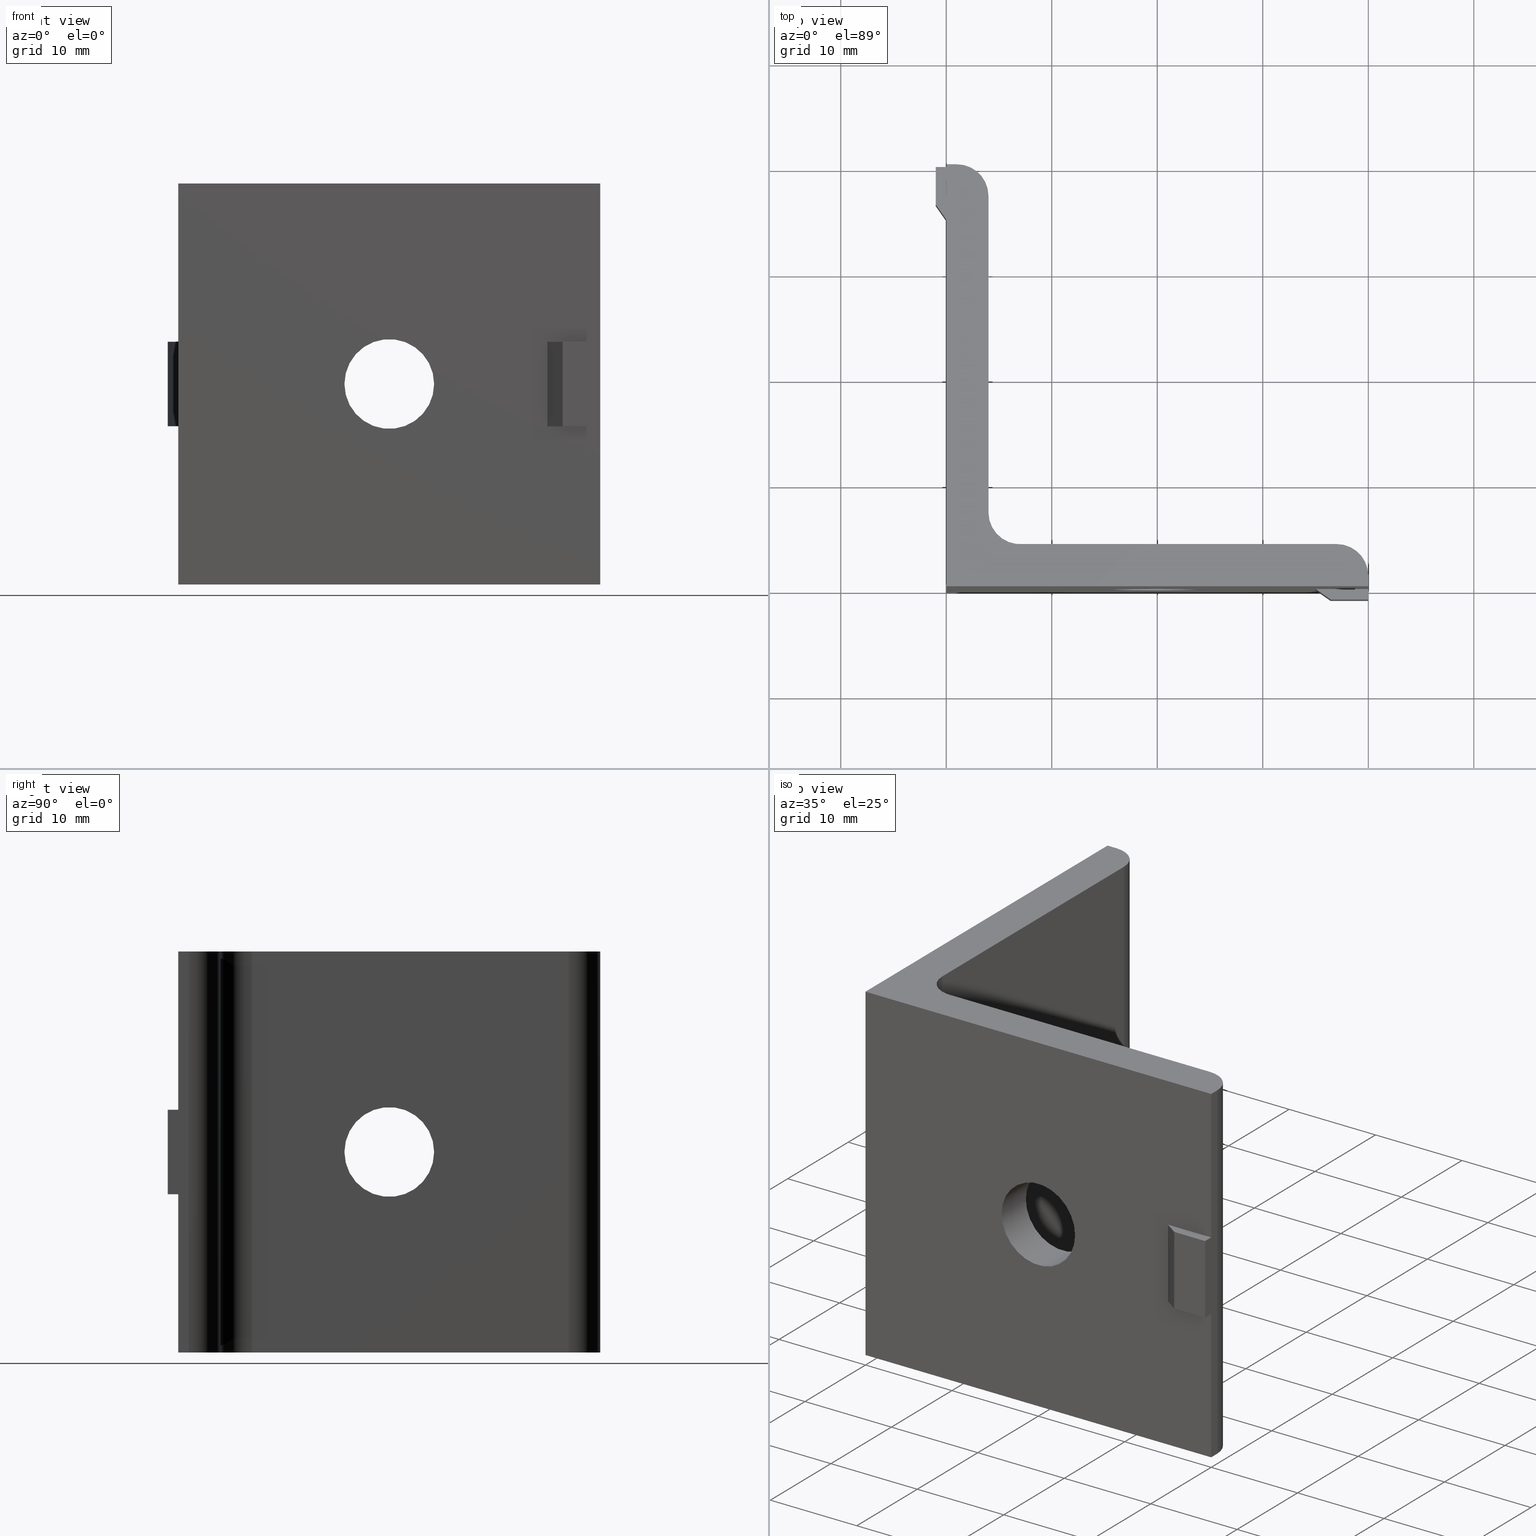
[diagram: canonical four-view strip — front | top / right | iso, engineering-drawing reading convention]
A machine part, canonical four-view strip (front | top / right | iso — engineering-drawing reading convention). The complete STEP part file that produces these views, byte-faithful:
ISO-10303-21;
HEADER;
/* Generated by software containing ST-Developer
 * from STEP Tools, Inc. (www.steptools.com) 
 */

FILE_DESCRIPTION(
/* description */ ('SQUADRETTA 40x40x40 L ANTIROT.'),
/* implementation_level */ '2;1');

FILE_NAME(
/* name */ 
'Q:\\Catalogo\\2_Accessori Dierre\\Per Download Web e catalogo cartace
o\\CATALOGO ELEMENTI ASSEMBLAGGIO\\PAGINA 31\\DSQAL0000021.stp',
/* time_stamp */ '2018-06-11T14:55:03+02:00',
/* author */ ('fzagni'),
/* organization */ (''),
/* preprocessor_version */ 'ST-DEVELOPER v16.1',
/* originating_system */ 'Autodesk Inventor 2016',
/* authorisation */ '');

FILE_SCHEMA (('AUTOMOTIVE_DESIGN { 1 0 10303 214 3 1 1 }'));
ENDSEC;

DATA;
#10=MECHANICAL_DESIGN_GEOMETRIC_PRESENTATION_REPRESENTATION('',(#13),#674);
#11=SHAPE_REPRESENTATION_RELATIONSHIP('SRR','None',#683,#12);
#12=ADVANCED_BREP_SHAPE_REPRESENTATION('',(#14),#673);
#13=STYLED_ITEM('',(#692),#14);
#14=MANIFOLD_SOLID_BREP('None',#414);
#15=FACE_BOUND('',#62,.T.);
#16=FACE_BOUND('',#65,.T.);
#17=FACE_BOUND('',#75,.T.);
#18=FACE_BOUND('',#79,.T.);
#19=FACE_BOUND('',#81,.T.);
#20=FACE_BOUND('',#83,.T.);
#21=CIRCLE('',#420,3.00000087730359);
#22=CIRCLE('',#421,3.00000087730359);
#23=CIRCLE('',#423,4.24999905648292);
#24=CIRCLE('',#425,3.01646599772585);
#25=CIRCLE('',#426,3.01646599772585);
#26=CIRCLE('',#428,4.24999905648292);
#27=CIRCLE('',#430,3.00000123570885);
#28=CIRCLE('',#431,3.00000123570885);
#29=CIRCLE('',#440,4.24999905648292);
#30=CIRCLE('',#444,4.24999905648292);
#31=CYLINDRICAL_SURFACE('',#419,3.00000087730359);
#32=CYLINDRICAL_SURFACE('',#424,3.01646599772585);
#33=CYLINDRICAL_SURFACE('',#429,3.00000123570885);
#34=CYLINDRICAL_SURFACE('',#445,4.24999905648292);
#35=CYLINDRICAL_SURFACE('',#446,4.24999905648292);
#36=FACE_OUTER_BOUND('',#57,.T.);
#37=FACE_OUTER_BOUND('',#58,.T.);
#38=FACE_OUTER_BOUND('',#59,.T.);
#39=FACE_OUTER_BOUND('',#60,.T.);
#40=FACE_OUTER_BOUND('',#61,.T.);
#41=FACE_OUTER_BOUND('',#63,.T.);
#42=FACE_OUTER_BOUND('',#64,.T.);
#43=FACE_OUTER_BOUND('',#66,.T.);
#44=FACE_OUTER_BOUND('',#67,.T.);
#45=FACE_OUTER_BOUND('',#68,.T.);
#46=FACE_OUTER_BOUND('',#69,.T.);
#47=FACE_OUTER_BOUND('',#70,.T.);
#48=FACE_OUTER_BOUND('',#71,.T.);
#49=FACE_OUTER_BOUND('',#72,.T.);
#50=FACE_OUTER_BOUND('',#73,.T.);
#51=FACE_OUTER_BOUND('',#74,.T.);
#52=FACE_OUTER_BOUND('',#76,.T.);
#53=FACE_OUTER_BOUND('',#77,.T.);
#54=FACE_OUTER_BOUND('',#78,.T.);
#55=FACE_OUTER_BOUND('',#80,.T.);
#56=FACE_OUTER_BOUND('',#82,.T.);
#57=EDGE_LOOP('',(#267,#268,#269,#270));
#58=EDGE_LOOP('',(#271,#272,#273,#274));
#59=EDGE_LOOP('',(#275,#276,#277,#278,#279,#280,#281,#282));
#60=EDGE_LOOP('',(#283,#284,#285,#286));
#61=EDGE_LOOP('',(#287,#288,#289,#290));
#62=EDGE_LOOP('',(#291));
#63=EDGE_LOOP('',(#292,#293,#294,#295));
#64=EDGE_LOOP('',(#296,#297,#298,#299));
#65=EDGE_LOOP('',(#300));
#66=EDGE_LOOP('',(#301,#302,#303,#304));
#67=EDGE_LOOP('',(#305,#306,#307,#308,#309,#310,#311,#312));
#68=EDGE_LOOP('',(#313,#314,#315,#316));
#69=EDGE_LOOP('',(#317,#318,#319,#320));
#70=EDGE_LOOP('',(#321,#322,#323,#324,#325,#326,#327,#328,#329));
#71=EDGE_LOOP('',(#330,#331,#332,#333,#334,#335,#336,#337,#338));
#72=EDGE_LOOP('',(#339,#340,#341,#342));
#73=EDGE_LOOP('',(#343,#344,#345,#346));
#74=EDGE_LOOP('',(#347,#348,#349,#350,#351,#352,#353,#354));
#75=EDGE_LOOP('',(#355));
#76=EDGE_LOOP('',(#356,#357,#358,#359));
#77=EDGE_LOOP('',(#360,#361,#362,#363));
#78=EDGE_LOOP('',(#364,#365,#366,#367,#368,#369,#370,#371));
#79=EDGE_LOOP('',(#372));
#80=EDGE_LOOP('',(#373));
#81=EDGE_LOOP('',(#374));
#82=EDGE_LOOP('',(#375));
#83=EDGE_LOOP('',(#376));
#84=LINE('',#560,#129);
#85=LINE('',#562,#130);
#86=LINE('',#564,#131);
#87=LINE('',#565,#132);
#88=LINE('',#568,#133);
#89=LINE('',#570,#134);
#90=LINE('',#571,#135);
#91=LINE('',#575,#136);
#92=LINE('',#577,#137);
#93=LINE('',#579,#138);
#94=LINE('',#580,#139);
#95=LINE('',#582,#140);
#96=LINE('',#584,#141);
#97=LINE('',#585,#142);
#98=LINE('',#590,#143);
#99=LINE('',#594,#144);
#100=LINE('',#596,#145);
#101=LINE('',#597,#146);
#102=LINE('',#604,#147);
#103=LINE('',#608,#148);
#104=LINE('',#610,#149);
#105=LINE('',#611,#150);
#106=LINE('',#618,#151);
#107=LINE('',#622,#152);
#108=LINE('',#624,#153);
#109=LINE('',#626,#154);
#110=LINE('',#628,#155);
#111=LINE('',#630,#156);
#112=LINE('',#632,#157);
#113=LINE('',#633,#158);
#114=LINE('',#636,#159);
#115=LINE('',#638,#160);
#116=LINE('',#639,#161);
#117=LINE('',#643,#162);
#118=LINE('',#644,#163);
#119=LINE('',#645,#164);
#120=LINE('',#648,#165);
#121=LINE('',#649,#166);
#122=LINE('',#652,#167);
#123=LINE('',#653,#168);
#124=LINE('',#655,#169);
#125=LINE('',#657,#170);
#126=LINE('',#659,#171);
#127=LINE('',#663,#172);
#128=LINE('',#665,#173);
#129=VECTOR('',#451,8.);
#130=VECTOR('',#452,1.74755421724879);
#131=VECTOR('',#453,8.);
#132=VECTOR('',#454,1.74755421724879);
#133=VECTOR('',#457,3.56684795819318);
#134=VECTOR('',#458,8.);
#135=VECTOR('',#459,3.56684795819318);
#136=VECTOR('',#462,38.);
#137=VECTOR('',#463,1.00000586461692);
#138=VECTOR('',#464,15.);
#139=VECTOR('',#465,0.999999777934136);
#140=VECTOR('',#466,0.999999777934136);
#141=VECTOR('',#467,15.);
#142=VECTOR('',#468,1.00000586461692);
#143=VECTOR('',#473,38.);
#144=VECTOR('',#478,29.6686892302173);
#145=VECTOR('',#479,38.);
#146=VECTOR('',#480,29.6686892302173);
#147=VECTOR('',#487,38.);
#148=VECTOR('',#492,29.9999916301208);
#149=VECTOR('',#493,38.);
#150=VECTOR('',#494,29.9999916301208);
#151=VECTOR('',#501,38.);
#152=VECTOR('',#506,0.999998827996023);
#153=VECTOR('',#507,15.);
#154=VECTOR('',#508,1.00000072799594);
#155=VECTOR('',#509,7.99999999999999);
#156=VECTOR('',#510,1.00000072799594);
#157=VECTOR('',#511,15.);
#158=VECTOR('',#512,0.999998827996023);
#159=VECTOR('',#515,3.56684795814544);
#160=VECTOR('',#516,7.99999999999999);
#161=VECTOR('',#517,3.56684795814544);
#162=VECTOR('',#520,7.99999999999999);
#163=VECTOR('',#521,1.7475539818121);
#164=VECTOR('',#522,1.7475539818121);
#165=VECTOR('',#525,39.9999863498886);
#166=VECTOR('',#526,39.9999911198402);
#167=VECTOR('',#529,39.9999911198402);
#168=VECTOR('',#530,39.9999863498886);
#169=VECTOR('',#533,5.00000651997834);
#170=VECTOR('',#536,5.00000651997834);
#171=VECTOR('',#539,38.);
#172=VECTOR('',#544,5.00000747002513);
#173=VECTOR('',#547,5.00000747002513);
#174=VERTEX_POINT('',#558);
#175=VERTEX_POINT('',#559);
#176=VERTEX_POINT('',#561);
#177=VERTEX_POINT('',#563);
#178=VERTEX_POINT('',#567);
#179=VERTEX_POINT('',#569);
#180=VERTEX_POINT('',#573);
#181=VERTEX_POINT('',#574);
#182=VERTEX_POINT('',#576);
#183=VERTEX_POINT('',#578);
#184=VERTEX_POINT('',#581);
#185=VERTEX_POINT('',#583);
#186=VERTEX_POINT('',#587);
#187=VERTEX_POINT('',#589);
#188=VERTEX_POINT('',#593);
#189=VERTEX_POINT('',#595);
#190=VERTEX_POINT('',#598);
#191=VERTEX_POINT('',#601);
#192=VERTEX_POINT('',#603);
#193=VERTEX_POINT('',#607);
#194=VERTEX_POINT('',#609);
#195=VERTEX_POINT('',#612);
#196=VERTEX_POINT('',#615);
#197=VERTEX_POINT('',#617);
#198=VERTEX_POINT('',#621);
#199=VERTEX_POINT('',#623);
#200=VERTEX_POINT('',#625);
#201=VERTEX_POINT('',#627);
#202=VERTEX_POINT('',#629);
#203=VERTEX_POINT('',#631);
#204=VERTEX_POINT('',#635);
#205=VERTEX_POINT('',#637);
#206=VERTEX_POINT('',#641);
#207=VERTEX_POINT('',#642);
#208=VERTEX_POINT('',#647);
#209=VERTEX_POINT('',#651);
#210=VERTEX_POINT('',#660);
#211=VERTEX_POINT('',#667);
#212=EDGE_CURVE('',#174,#175,#84,.T.);
#213=EDGE_CURVE('',#174,#176,#85,.T.);
#214=EDGE_CURVE('',#176,#177,#86,.T.);
#215=EDGE_CURVE('',#175,#177,#87,.T.);
#216=EDGE_CURVE('',#176,#178,#88,.T.);
#217=EDGE_CURVE('',#178,#179,#89,.T.);
#218=EDGE_CURVE('',#177,#179,#90,.T.);
#219=EDGE_CURVE('',#180,#181,#91,.T.);
#220=EDGE_CURVE('',#182,#181,#92,.T.);
#221=EDGE_CURVE('',#182,#183,#93,.T.);
#222=EDGE_CURVE('',#179,#183,#94,.T.);
#223=EDGE_CURVE('',#178,#184,#95,.T.);
#224=EDGE_CURVE('',#185,#184,#96,.T.);
#225=EDGE_CURVE('',#185,#180,#97,.T.);
#226=EDGE_CURVE('',#180,#186,#21,.T.);
#227=EDGE_CURVE('',#186,#187,#98,.T.);
#228=EDGE_CURVE('',#181,#187,#22,.T.);
#229=EDGE_CURVE('',#186,#188,#99,.T.);
#230=EDGE_CURVE('',#188,#189,#100,.T.);
#231=EDGE_CURVE('',#187,#189,#101,.T.);
#232=EDGE_CURVE('',#190,#190,#23,.T.);
#233=EDGE_CURVE('',#188,#191,#24,.T.);
#234=EDGE_CURVE('',#191,#192,#102,.T.);
#235=EDGE_CURVE('',#189,#192,#25,.T.);
#236=EDGE_CURVE('',#191,#193,#103,.T.);
#237=EDGE_CURVE('',#193,#194,#104,.T.);
#238=EDGE_CURVE('',#192,#194,#105,.T.);
#239=EDGE_CURVE('',#195,#195,#26,.T.);
#240=EDGE_CURVE('',#193,#196,#27,.T.);
#241=EDGE_CURVE('',#196,#197,#106,.T.);
#242=EDGE_CURVE('',#194,#197,#28,.T.);
#243=EDGE_CURVE('',#196,#198,#107,.T.);
#244=EDGE_CURVE('',#198,#199,#108,.T.);
#245=EDGE_CURVE('',#200,#199,#109,.T.);
#246=EDGE_CURVE('',#200,#201,#110,.T.);
#247=EDGE_CURVE('',#201,#202,#111,.T.);
#248=EDGE_CURVE('',#203,#202,#112,.T.);
#249=EDGE_CURVE('',#197,#203,#113,.T.);
#250=EDGE_CURVE('',#200,#204,#114,.T.);
#251=EDGE_CURVE('',#204,#205,#115,.T.);
#252=EDGE_CURVE('',#201,#205,#116,.T.);
#253=EDGE_CURVE('',#206,#207,#117,.T.);
#254=EDGE_CURVE('',#207,#205,#118,.T.);
#255=EDGE_CURVE('',#206,#204,#119,.T.);
#256=EDGE_CURVE('',#208,#185,#120,.T.);
#257=EDGE_CURVE('',#208,#198,#121,.T.);
#258=EDGE_CURVE('',#209,#203,#122,.T.);
#259=EDGE_CURVE('',#209,#182,#123,.T.);
#260=EDGE_CURVE('',#206,#199,#124,.T.);
#261=EDGE_CURVE('',#202,#207,#125,.T.);
#262=EDGE_CURVE('',#208,#209,#126,.T.);
#263=EDGE_CURVE('',#210,#210,#29,.T.);
#264=EDGE_CURVE('',#175,#183,#127,.T.);
#265=EDGE_CURVE('',#184,#174,#128,.T.);
#266=EDGE_CURVE('',#211,#211,#30,.T.);
#267=ORIENTED_EDGE('',*,*,#212,.F.);
#268=ORIENTED_EDGE('',*,*,#213,.T.);
#269=ORIENTED_EDGE('',*,*,#214,.T.);
#270=ORIENTED_EDGE('',*,*,#215,.F.);
#271=ORIENTED_EDGE('',*,*,#214,.F.);
#272=ORIENTED_EDGE('',*,*,#216,.T.);
#273=ORIENTED_EDGE('',*,*,#217,.T.);
#274=ORIENTED_EDGE('',*,*,#218,.F.);
#275=ORIENTED_EDGE('',*,*,#219,.T.);
#276=ORIENTED_EDGE('',*,*,#220,.F.);
#277=ORIENTED_EDGE('',*,*,#221,.T.);
#278=ORIENTED_EDGE('',*,*,#222,.F.);
#279=ORIENTED_EDGE('',*,*,#217,.F.);
#280=ORIENTED_EDGE('',*,*,#223,.T.);
#281=ORIENTED_EDGE('',*,*,#224,.F.);
#282=ORIENTED_EDGE('',*,*,#225,.T.);
#283=ORIENTED_EDGE('',*,*,#226,.T.);
#284=ORIENTED_EDGE('',*,*,#227,.T.);
#285=ORIENTED_EDGE('',*,*,#228,.F.);
#286=ORIENTED_EDGE('',*,*,#219,.F.);
#287=ORIENTED_EDGE('',*,*,#229,.T.);
#288=ORIENTED_EDGE('',*,*,#230,.T.);
#289=ORIENTED_EDGE('',*,*,#231,.F.);
#290=ORIENTED_EDGE('',*,*,#227,.F.);
#291=ORIENTED_EDGE('',*,*,#232,.F.);
#292=ORIENTED_EDGE('',*,*,#233,.T.);
#293=ORIENTED_EDGE('',*,*,#234,.T.);
#294=ORIENTED_EDGE('',*,*,#235,.F.);
#295=ORIENTED_EDGE('',*,*,#230,.F.);
#296=ORIENTED_EDGE('',*,*,#236,.T.);
#297=ORIENTED_EDGE('',*,*,#237,.T.);
#298=ORIENTED_EDGE('',*,*,#238,.F.);
#299=ORIENTED_EDGE('',*,*,#234,.F.);
#300=ORIENTED_EDGE('',*,*,#239,.F.);
#301=ORIENTED_EDGE('',*,*,#240,.T.);
#302=ORIENTED_EDGE('',*,*,#241,.T.);
#303=ORIENTED_EDGE('',*,*,#242,.F.);
#304=ORIENTED_EDGE('',*,*,#237,.F.);
#305=ORIENTED_EDGE('',*,*,#243,.T.);
#306=ORIENTED_EDGE('',*,*,#244,.T.);
#307=ORIENTED_EDGE('',*,*,#245,.F.);
#308=ORIENTED_EDGE('',*,*,#246,.T.);
#309=ORIENTED_EDGE('',*,*,#247,.T.);
#310=ORIENTED_EDGE('',*,*,#248,.F.);
#311=ORIENTED_EDGE('',*,*,#249,.F.);
#312=ORIENTED_EDGE('',*,*,#241,.F.);
#313=ORIENTED_EDGE('',*,*,#250,.T.);
#314=ORIENTED_EDGE('',*,*,#251,.T.);
#315=ORIENTED_EDGE('',*,*,#252,.F.);
#316=ORIENTED_EDGE('',*,*,#246,.F.);
#317=ORIENTED_EDGE('',*,*,#253,.T.);
#318=ORIENTED_EDGE('',*,*,#254,.T.);
#319=ORIENTED_EDGE('',*,*,#251,.F.);
#320=ORIENTED_EDGE('',*,*,#255,.F.);
#321=ORIENTED_EDGE('',*,*,#225,.F.);
#322=ORIENTED_EDGE('',*,*,#256,.F.);
#323=ORIENTED_EDGE('',*,*,#257,.T.);
#324=ORIENTED_EDGE('',*,*,#243,.F.);
#325=ORIENTED_EDGE('',*,*,#240,.F.);
#326=ORIENTED_EDGE('',*,*,#236,.F.);
#327=ORIENTED_EDGE('',*,*,#233,.F.);
#328=ORIENTED_EDGE('',*,*,#229,.F.);
#329=ORIENTED_EDGE('',*,*,#226,.F.);
#330=ORIENTED_EDGE('',*,*,#228,.T.);
#331=ORIENTED_EDGE('',*,*,#231,.T.);
#332=ORIENTED_EDGE('',*,*,#235,.T.);
#333=ORIENTED_EDGE('',*,*,#238,.T.);
#334=ORIENTED_EDGE('',*,*,#242,.T.);
#335=ORIENTED_EDGE('',*,*,#249,.T.);
#336=ORIENTED_EDGE('',*,*,#258,.F.);
#337=ORIENTED_EDGE('',*,*,#259,.T.);
#338=ORIENTED_EDGE('',*,*,#220,.T.);
#339=ORIENTED_EDGE('',*,*,#255,.T.);
#340=ORIENTED_EDGE('',*,*,#250,.F.);
#341=ORIENTED_EDGE('',*,*,#245,.T.);
#342=ORIENTED_EDGE('',*,*,#260,.F.);
#343=ORIENTED_EDGE('',*,*,#261,.F.);
#344=ORIENTED_EDGE('',*,*,#247,.F.);
#345=ORIENTED_EDGE('',*,*,#252,.T.);
#346=ORIENTED_EDGE('',*,*,#254,.F.);
#347=ORIENTED_EDGE('',*,*,#260,.T.);
#348=ORIENTED_EDGE('',*,*,#244,.F.);
#349=ORIENTED_EDGE('',*,*,#257,.F.);
#350=ORIENTED_EDGE('',*,*,#262,.T.);
#351=ORIENTED_EDGE('',*,*,#258,.T.);
#352=ORIENTED_EDGE('',*,*,#248,.T.);
#353=ORIENTED_EDGE('',*,*,#261,.T.);
#354=ORIENTED_EDGE('',*,*,#253,.F.);
#355=ORIENTED_EDGE('',*,*,#263,.T.);
#356=ORIENTED_EDGE('',*,*,#215,.T.);
#357=ORIENTED_EDGE('',*,*,#218,.T.);
#358=ORIENTED_EDGE('',*,*,#222,.T.);
#359=ORIENTED_EDGE('',*,*,#264,.F.);
#360=ORIENTED_EDGE('',*,*,#265,.F.);
#361=ORIENTED_EDGE('',*,*,#223,.F.);
#362=ORIENTED_EDGE('',*,*,#216,.F.);
#363=ORIENTED_EDGE('',*,*,#213,.F.);
#364=ORIENTED_EDGE('',*,*,#264,.T.);
#365=ORIENTED_EDGE('',*,*,#221,.F.);
#366=ORIENTED_EDGE('',*,*,#259,.F.);
#367=ORIENTED_EDGE('',*,*,#262,.F.);
#368=ORIENTED_EDGE('',*,*,#256,.T.);
#369=ORIENTED_EDGE('',*,*,#224,.T.);
#370=ORIENTED_EDGE('',*,*,#265,.T.);
#371=ORIENTED_EDGE('',*,*,#212,.T.);
#372=ORIENTED_EDGE('',*,*,#266,.T.);
#373=ORIENTED_EDGE('',*,*,#266,.F.);
#374=ORIENTED_EDGE('',*,*,#232,.T.);
#375=ORIENTED_EDGE('',*,*,#263,.F.);
#376=ORIENTED_EDGE('',*,*,#239,.T.);
#377=PLANE('',#416);
#378=PLANE('',#417);
#379=PLANE('',#418);
#380=PLANE('',#422);
#381=PLANE('',#427);
#382=PLANE('',#432);
#383=PLANE('',#433);
#384=PLANE('',#434);
#385=PLANE('',#435);
#386=PLANE('',#436);
#387=PLANE('',#437);
#388=PLANE('',#438);
#389=PLANE('',#439);
#390=PLANE('',#441);
#391=PLANE('',#442);
#392=PLANE('',#443);
#393=ADVANCED_FACE('',(#36),#377,.T.);
#394=ADVANCED_FACE('',(#37),#378,.T.);
#395=ADVANCED_FACE('',(#38),#379,.T.);
#396=ADVANCED_FACE('',(#39),#31,.T.);
#397=ADVANCED_FACE('',(#40,#15),#380,.T.);
#398=ADVANCED_FACE('',(#41),#32,.F.);
#399=ADVANCED_FACE('',(#42,#16),#381,.T.);
#400=ADVANCED_FACE('',(#43),#33,.T.);
#401=ADVANCED_FACE('',(#44),#382,.T.);
#402=ADVANCED_FACE('',(#45),#383,.T.);
#403=ADVANCED_FACE('',(#46),#384,.T.);
#404=ADVANCED_FACE('',(#47),#385,.F.);
#405=ADVANCED_FACE('',(#48),#386,.T.);
#406=ADVANCED_FACE('',(#49),#387,.F.);
#407=ADVANCED_FACE('',(#50),#388,.F.);
#408=ADVANCED_FACE('',(#51,#17),#389,.T.);
#409=ADVANCED_FACE('',(#52),#390,.F.);
#410=ADVANCED_FACE('',(#53),#391,.F.);
#411=ADVANCED_FACE('',(#54,#18),#392,.T.);
#412=ADVANCED_FACE('',(#55,#19),#34,.F.);
#413=ADVANCED_FACE('',(#56,#20),#35,.F.);
#414=CLOSED_SHELL('',(#393,#394,#395,#396,#397,#398,#399,#400,#401,#402,
#403,#404,#405,#406,#407,#408,#409,#410,#411,#412,#413));
#415=AXIS2_PLACEMENT_3D('placement',#556,#447,#448);
#416=AXIS2_PLACEMENT_3D('',#557,#449,#450);
#417=AXIS2_PLACEMENT_3D('',#566,#455,#456);
#418=AXIS2_PLACEMENT_3D('',#572,#460,#461);
#419=AXIS2_PLACEMENT_3D('',#586,#469,#470);
#420=AXIS2_PLACEMENT_3D('',#588,#471,#472);
#421=AXIS2_PLACEMENT_3D('',#591,#474,#475);
#422=AXIS2_PLACEMENT_3D('',#592,#476,#477);
#423=AXIS2_PLACEMENT_3D('',#599,#481,#482);
#424=AXIS2_PLACEMENT_3D('',#600,#483,#484);
#425=AXIS2_PLACEMENT_3D('',#602,#485,#486);
#426=AXIS2_PLACEMENT_3D('',#605,#488,#489);
#427=AXIS2_PLACEMENT_3D('',#606,#490,#491);
#428=AXIS2_PLACEMENT_3D('',#613,#495,#496);
#429=AXIS2_PLACEMENT_3D('',#614,#497,#498);
#430=AXIS2_PLACEMENT_3D('',#616,#499,#500);
#431=AXIS2_PLACEMENT_3D('',#619,#502,#503);
#432=AXIS2_PLACEMENT_3D('',#620,#504,#505);
#433=AXIS2_PLACEMENT_3D('',#634,#513,#514);
#434=AXIS2_PLACEMENT_3D('',#640,#518,#519);
#435=AXIS2_PLACEMENT_3D('',#646,#523,#524);
#436=AXIS2_PLACEMENT_3D('',#650,#527,#528);
#437=AXIS2_PLACEMENT_3D('',#654,#531,#532);
#438=AXIS2_PLACEMENT_3D('',#656,#534,#535);
#439=AXIS2_PLACEMENT_3D('',#658,#537,#538);
#440=AXIS2_PLACEMENT_3D('',#661,#540,#541);
#441=AXIS2_PLACEMENT_3D('',#662,#542,#543);
#442=AXIS2_PLACEMENT_3D('',#664,#545,#546);
#443=AXIS2_PLACEMENT_3D('',#666,#548,#549);
#444=AXIS2_PLACEMENT_3D('',#668,#550,#551);
#445=AXIS2_PLACEMENT_3D('',#669,#552,#553);
#446=AXIS2_PLACEMENT_3D('',#670,#554,#555);
#447=DIRECTION('axis',(0.,0.,1.));
#448=DIRECTION('refdir',(1.,0.,0.));
#449=DIRECTION('center_axis',(-0.572228185005018,-0.820094448393515,0.));
#450=DIRECTION('ref_axis',(0.,0.,1.));
#451=DIRECTION('',(0.,0.,1.));
#452=DIRECTION('',(0.820094448393515,-0.572228185005017,0.));
#453=DIRECTION('',(0.,0.,1.));
#454=DIRECTION('',(0.820094448393515,-0.572228185005017,0.));
#455=DIRECTION('center_axis',(0.,-1.,0.));
#456=DIRECTION('ref_axis',(0.,0.,-1.));
#457=DIRECTION('',(1.,0.,0.));
#458=DIRECTION('',(0.,0.,1.));
#459=DIRECTION('',(1.,0.,0.));
#460=DIRECTION('center_axis',(1.,2.27373E-13,0.));
#461=DIRECTION('ref_axis',(0.,0.,-1.));
#462=DIRECTION('',(0.,0.,1.));
#463=DIRECTION('',(-2.30925034835165E-13,1.,0.));
#464=DIRECTION('',(0.,0.,-1.));
#465=DIRECTION('',(-4.52971094636481E-13,1.,0.));
#466=DIRECTION('',(-4.52971094636481E-13,1.,1.66533490675177E-15));
#467=DIRECTION('',(0.,0.,1.));
#468=DIRECTION('',(-2.30925034835165E-13,1.,0.));
#469=DIRECTION('center_axis',(0.,0.,1.));
#470=DIRECTION('ref_axis',(1.,0.,0.));
#471=DIRECTION('center_axis',(0.,0.,1.));
#472=DIRECTION('ref_axis',(0.,1.,0.));
#473=DIRECTION('',(0.,0.,1.));
#474=DIRECTION('center_axis',(0.,0.,1.));
#475=DIRECTION('ref_axis',(0.,1.,0.));
#476=DIRECTION('center_axis',(0.,1.,0.));
#477=DIRECTION('ref_axis',(0.,0.,1.));
#478=DIRECTION('',(-1.,0.,0.));
#479=DIRECTION('',(0.,0.,1.));
#480=DIRECTION('',(-1.,0.,0.));
#481=DIRECTION('center_axis',(0.,1.,0.));
#482=DIRECTION('ref_axis',(-1.,0.,0.));
#483=DIRECTION('center_axis',(0.,0.,-1.));
#484=DIRECTION('ref_axis',(0.104370538628116,-0.994538481239654,0.));
#485=DIRECTION('center_axis',(0.,0.,-1.));
#486=DIRECTION('ref_axis',(-1.,0.,0.));
#487=DIRECTION('',(0.,0.,1.));
#488=DIRECTION('center_axis',(0.,0.,-1.));
#489=DIRECTION('ref_axis',(-1.,0.,0.));
#490=DIRECTION('center_axis',(1.,0.,0.));
#491=DIRECTION('ref_axis',(0.,0.,-1.));
#492=DIRECTION('',(0.,1.,0.));
#493=DIRECTION('',(0.,0.,1.));
#494=DIRECTION('',(0.,1.,0.));
#495=DIRECTION('center_axis',(1.,0.,0.));
#496=DIRECTION('ref_axis',(0.,1.,0.));
#497=DIRECTION('center_axis',(0.,0.,1.));
#498=DIRECTION('ref_axis',(1.,0.,0.));
#499=DIRECTION('center_axis',(0.,0.,1.));
#500=DIRECTION('ref_axis',(1.,0.,0.));
#501=DIRECTION('',(0.,0.,1.));
#502=DIRECTION('center_axis',(0.,0.,1.));
#503=DIRECTION('ref_axis',(1.,0.,0.));
#504=DIRECTION('center_axis',(0.,1.,0.));
#505=DIRECTION('ref_axis',(0.,0.,1.));
#506=DIRECTION('',(-1.,0.,0.));
#507=DIRECTION('',(0.,0.,1.));
#508=DIRECTION('',(1.,0.,0.));
#509=DIRECTION('',(0.,0.,1.));
#510=DIRECTION('',(1.,0.,0.));
#511=DIRECTION('',(0.,0.,-1.));
#512=DIRECTION('',(-1.,0.,0.));
#513=DIRECTION('center_axis',(-1.,0.,0.));
#514=DIRECTION('ref_axis',(0.,0.,1.));
#515=DIRECTION('',(0.,-1.,0.));
#516=DIRECTION('',(0.,0.,1.));
#517=DIRECTION('',(0.,-1.,0.));
#518=DIRECTION('center_axis',(-0.820094015262865,-0.572228805749966,0.));
#519=DIRECTION('ref_axis',(0.,0.,1.));
#520=DIRECTION('',(0.,0.,1.));
#521=DIRECTION('',(-0.572228805749966,0.820094015262864,0.));
#522=DIRECTION('',(-0.572228805749966,0.820094015262864,0.));
#523=DIRECTION('center_axis',(0.,0.,1.));
#524=DIRECTION('ref_axis',(1.,0.,0.));
#525=DIRECTION('',(1.,0.,0.));
#526=DIRECTION('',(0.,1.,0.));
#527=DIRECTION('center_axis',(0.,0.,1.));
#528=DIRECTION('ref_axis',(1.,0.,0.));
#529=DIRECTION('',(0.,1.,0.));
#530=DIRECTION('',(1.,0.,0.));
#531=DIRECTION('center_axis',(0.,0.,1.));
#532=DIRECTION('ref_axis',(1.,0.,0.));
#533=DIRECTION('',(0.,1.,0.));
#534=DIRECTION('center_axis',(0.,0.,-1.));
#535=DIRECTION('ref_axis',(-1.,0.,0.));
#536=DIRECTION('',(0.,-1.,0.));
#537=DIRECTION('center_axis',(-1.,0.,0.));
#538=DIRECTION('ref_axis',(0.,0.,1.));
#539=DIRECTION('',(0.,0.,1.));
#540=DIRECTION('center_axis',(1.,0.,0.));
#541=DIRECTION('ref_axis',(0.,1.,0.));
#542=DIRECTION('center_axis',(0.,0.,-1.));
#543=DIRECTION('ref_axis',(-1.,0.,0.));
#544=DIRECTION('',(1.,0.,0.));
#545=DIRECTION('center_axis',(0.,0.,1.));
#546=DIRECTION('ref_axis',(1.,0.,0.));
#547=DIRECTION('',(-1.,0.,0.));
#548=DIRECTION('center_axis',(0.,-1.,0.));
#549=DIRECTION('ref_axis',(0.,0.,-1.));
#550=DIRECTION('center_axis',(0.,1.,0.));
#551=DIRECTION('ref_axis',(-1.,0.,0.));
#552=DIRECTION('center_axis',(0.,1.,0.));
#553=DIRECTION('ref_axis',(-1.,0.,0.));
#554=DIRECTION('center_axis',(1.,0.,0.));
#555=DIRECTION('ref_axis',(0.,1.,0.));
#556=CARTESIAN_POINT('',(0.,0.,0.));
#557=CARTESIAN_POINT('Origin',(34.999978879863,0.,-19.));
#558=CARTESIAN_POINT('',(34.999978879863,0.,-4.));
#559=CARTESIAN_POINT('',(34.999978879863,0.,4.));
#560=CARTESIAN_POINT('',(34.999978879863,0.,-4.));
#561=CARTESIAN_POINT('',(36.4331383916954,-0.999999777934136,-4.));
#562=CARTESIAN_POINT('',(34.999978879863,0.,-4.));
#563=CARTESIAN_POINT('',(36.4331383916954,-0.999999777934136,4.));
#564=CARTESIAN_POINT('',(36.4331383916954,-0.999999777934136,-4.));
#565=CARTESIAN_POINT('',(34.999978879863,0.,4.));
#566=CARTESIAN_POINT('Origin',(36.4331383916954,-0.999999777934136,-19.));
#567=CARTESIAN_POINT('',(39.9999863498886,-0.999999777934136,-4.));
#568=CARTESIAN_POINT('',(36.4331383916954,-0.999999777934136,-4.));
#569=CARTESIAN_POINT('',(39.9999863498886,-0.999999777934136,4.));
#570=CARTESIAN_POINT('',(39.9999863498886,-0.999999777934136,-4.));
#571=CARTESIAN_POINT('',(36.4331383916954,-0.999999777934136,4.));
#572=CARTESIAN_POINT('Origin',(39.9999863498886,-0.999999777934136,-19.));
#573=CARTESIAN_POINT('',(39.9999863498876,1.00000586461692,-19.));
#574=CARTESIAN_POINT('',(39.9999863498876,1.00000586461692,19.));
#575=CARTESIAN_POINT('',(39.9999863498876,1.00000586461692,-19.));
#576=CARTESIAN_POINT('',(39.9999863498886,0.,19.));
#577=CARTESIAN_POINT('',(39.9999863498883,-5.33140627519022E-26,19.));
#578=CARTESIAN_POINT('',(39.9999863498881,0.,4.));
#579=CARTESIAN_POINT('',(39.9999863498886,0.,19.));
#580=CARTESIAN_POINT('',(39.9999863498886,-0.999999777934136,4.));
#581=CARTESIAN_POINT('',(39.9999863498881,0.,-4.));
#582=CARTESIAN_POINT('',(39.9999863498886,-0.999999777934136,-4.));
#583=CARTESIAN_POINT('',(39.9999863498886,0.,-19.));
#584=CARTESIAN_POINT('',(39.9999863498886,0.,-19.));
#585=CARTESIAN_POINT('',(39.9999863498883,-5.33140627519022E-26,-19.));
#586=CARTESIAN_POINT('Origin',(36.9999854725841,1.00000586461692,-19.));
#587=CARTESIAN_POINT('',(36.9999854725841,4.00000674192052,-19.));
#588=CARTESIAN_POINT('Origin',(36.9999854725841,1.00000586461692,-19.));
#589=CARTESIAN_POINT('',(36.9999854725841,4.00000674192052,19.));
#590=CARTESIAN_POINT('',(36.9999854725841,4.00000674192052,-19.));
#591=CARTESIAN_POINT('Origin',(36.9999854725841,1.00000586461692,19.));
#592=CARTESIAN_POINT('Origin',(36.9999854725841,4.00000674192052,-19.));
#593=CARTESIAN_POINT('',(7.33129624236676,4.00000674192097,-19.));
#594=CARTESIAN_POINT('',(36.9999854725841,4.00000674192052,-19.));
#595=CARTESIAN_POINT('',(7.33129624236676,4.00000674192097,19.));
#596=CARTESIAN_POINT('',(7.33129624236676,4.00000674192097,-19.));
#597=CARTESIAN_POINT('',(36.9999854725841,4.00000674192052,19.));
#598=CARTESIAN_POINT('',(24.2499987414494,4.00000674192136,0.));
#599=CARTESIAN_POINT('Origin',(19.9999996849665,4.00000674192142,0.));
#600=CARTESIAN_POINT('Origin',(7.01646606143072,6.99999825401028,-19.));
#601=CARTESIAN_POINT('',(4.00000006370487,6.99999825401028,-19.));
#602=CARTESIAN_POINT('Origin',(7.01646606143072,6.99999825401028,-19.));
#603=CARTESIAN_POINT('',(4.00000006370487,6.99999825401028,19.));
#604=CARTESIAN_POINT('',(4.00000006370487,6.99999825401028,-19.));
#605=CARTESIAN_POINT('Origin',(7.01646606143072,6.99999825401028,19.));
#606=CARTESIAN_POINT('Origin',(4.00000006370487,6.99999825401028,-19.));
#607=CARTESIAN_POINT('',(4.00000006370487,36.9999898841311,-19.));
#608=CARTESIAN_POINT('',(4.00000006370487,6.99999825401028,-19.));
#609=CARTESIAN_POINT('',(4.00000006370487,36.9999898841311,19.));
#610=CARTESIAN_POINT('',(4.00000006370487,36.9999898841311,-19.));
#611=CARTESIAN_POINT('',(4.00000006370487,6.99999825401028,19.));
#612=CARTESIAN_POINT('',(4.00000006370487,15.7500041334356,3.552714E-15));
#613=CARTESIAN_POINT('Origin',(4.00000006370487,20.0000031899185,3.552714E-15));
#614=CARTESIAN_POINT('Origin',(0.999998827996023,36.9999898841311,-19.));
#615=CARTESIAN_POINT('',(0.999998827996023,39.9999911198402,-19.));
#616=CARTESIAN_POINT('Origin',(0.999998827996023,36.9999898841311,-19.));
#617=CARTESIAN_POINT('',(0.999998827996023,39.9999911198402,19.));
#618=CARTESIAN_POINT('',(0.999998827996023,39.9999911198402,-19.));
#619=CARTESIAN_POINT('Origin',(0.999998827996023,36.9999898841311,19.));
#620=CARTESIAN_POINT('Origin',(0.999998827996023,39.9999911198402,-19.));
#621=CARTESIAN_POINT('',(0.,39.9999911198402,-19.));
#622=CARTESIAN_POINT('',(0.999998827996023,39.9999911198402,-19.));
#623=CARTESIAN_POINT('',(0.,39.9999911198402,-4.));
#624=CARTESIAN_POINT('',(0.,39.9999911198402,-19.));
#625=CARTESIAN_POINT('',(-1.00000072799594,39.9999911198402,-4.));
#626=CARTESIAN_POINT('',(-1.00000072799594,39.9999911198402,-4.));
#627=CARTESIAN_POINT('',(-1.00000072799594,39.9999911198402,4.));
#628=CARTESIAN_POINT('',(-1.00000072799594,39.9999911198402,-4.));
#629=CARTESIAN_POINT('',(0.,39.9999911198402,4.));
#630=CARTESIAN_POINT('',(-1.00000072799594,39.9999911198402,4.));
#631=CARTESIAN_POINT('',(0.,39.9999911198402,19.));
#632=CARTESIAN_POINT('',(0.,39.9999911198402,19.));
#633=CARTESIAN_POINT('',(0.999998827996023,39.9999911198402,19.));
#634=CARTESIAN_POINT('Origin',(-1.00000072799594,39.9999911198402,-19.));
#635=CARTESIAN_POINT('',(-1.00000072799594,36.4331431616947,-4.));
#636=CARTESIAN_POINT('',(-1.00000072799594,39.9999911198402,-4.));
#637=CARTESIAN_POINT('',(-1.00000072799594,36.4331431616947,4.));
#638=CARTESIAN_POINT('',(-1.00000072799594,36.4331431616947,-4.));
#639=CARTESIAN_POINT('',(-1.00000072799594,39.9999911198402,4.));
#640=CARTESIAN_POINT('Origin',(-1.00000072799594,36.4331431616947,-19.));
#641=CARTESIAN_POINT('',(0.,34.9999845998618,-4.));
#642=CARTESIAN_POINT('',(0.,34.9999845998618,4.));
#643=CARTESIAN_POINT('',(0.,34.9999845998618,-4.));
#644=CARTESIAN_POINT('',(0.,34.9999845998618,4.));
#645=CARTESIAN_POINT('',(0.,34.9999845998618,-4.));
#646=CARTESIAN_POINT('Origin',(-5.10000416927255,-5.10000360110735,-19.));
#647=CARTESIAN_POINT('',(0.,0.,-19.));
#648=CARTESIAN_POINT('',(0.,0.,-19.));
#649=CARTESIAN_POINT('',(0.,0.,-19.));
#650=CARTESIAN_POINT('Origin',(-5.10000416927255,-5.10000360110735,19.));
#651=CARTESIAN_POINT('',(0.,0.,19.));
#652=CARTESIAN_POINT('',(0.,0.,19.));
#653=CARTESIAN_POINT('',(0.,0.,19.));
#654=CARTESIAN_POINT('Origin',(0.,0.,-4.));
#655=CARTESIAN_POINT('',(0.,34.9999845998618,-4.));
#656=CARTESIAN_POINT('Origin',(0.,60.,4.));
#657=CARTESIAN_POINT('',(0.,39.9999911198402,4.));
#658=CARTESIAN_POINT('Origin',(0.,40.0035896086783,-19.0035970583267));
#659=CARTESIAN_POINT('',(0.,0.,-19.));
#660=CARTESIAN_POINT('',(0.,15.7500041334356,3.552714E-15));
#661=CARTESIAN_POINT('Origin',(0.,20.0000031899185,3.552714E-15));
#662=CARTESIAN_POINT('Origin',(0.,0.,4.));
#663=CARTESIAN_POINT('',(34.999978879863,0.,4.));
#664=CARTESIAN_POINT('Origin',(59.0000009499993,0.,-4.));
#665=CARTESIAN_POINT('',(39.9999863498881,0.,-4.));
#666=CARTESIAN_POINT('Origin',(-0.003598488838179,0.,-19.0035984888382));
#667=CARTESIAN_POINT('',(24.2499987414494,-6.514193E-14,0.));
#668=CARTESIAN_POINT('Origin',(19.9999996849665,0.,0.));
#669=CARTESIAN_POINT('Origin',(19.9999996849665,4.00000674192142,0.));
#670=CARTESIAN_POINT('Origin',(4.00000006370487,20.0000031899185,3.552714E-15));
#671=UNCERTAINTY_MEASURE_WITH_UNIT(LENGTH_MEASURE(0.01),#675,
'DISTANCE_ACCURACY_VALUE',
'Maximum model space distance between geometric entities at asserted c
onnectivities');
#672=UNCERTAINTY_MEASURE_WITH_UNIT(LENGTH_MEASURE(1.E-6),#675,
'DISTANCE_ACCURACY_VALUE',
'Maximum model space distance between geometric entities at asserted c
onnectivities');
#673=(
GEOMETRIC_REPRESENTATION_CONTEXT(3)
GLOBAL_UNCERTAINTY_ASSIGNED_CONTEXT((#671))
GLOBAL_UNIT_ASSIGNED_CONTEXT((#675,#678,#676))
REPRESENTATION_CONTEXT('','3D')
);
#674=(
GEOMETRIC_REPRESENTATION_CONTEXT(3)
GLOBAL_UNCERTAINTY_ASSIGNED_CONTEXT((#672))
GLOBAL_UNIT_ASSIGNED_CONTEXT((#675,#678,#676))
REPRESENTATION_CONTEXT('','3D')
);
#675=(
LENGTH_UNIT()
NAMED_UNIT(*)
SI_UNIT(.MILLI.,.METRE.)
);
#676=(
NAMED_UNIT(*)
SI_UNIT($,.STERADIAN.)
SOLID_ANGLE_UNIT()
);
#677=DIMENSIONAL_EXPONENTS(0.,0.,0.,0.,0.,0.,0.);
#678=(
CONVERSION_BASED_UNIT('degree',#680)
NAMED_UNIT(#677)
PLANE_ANGLE_UNIT()
);
#679=(
NAMED_UNIT(*)
PLANE_ANGLE_UNIT()
SI_UNIT($,.RADIAN.)
);
#680=PLANE_ANGLE_MEASURE_WITH_UNIT(PLANE_ANGLE_MEASURE(0.01745329252),#679);
#681=SHAPE_DEFINITION_REPRESENTATION(#682,#683);
#682=PRODUCT_DEFINITION_SHAPE('',$,#685);
#683=SHAPE_REPRESENTATION('',(#415),#673);
#684=PRODUCT_DEFINITION_CONTEXT('part definition',#689,'design');
#685=PRODUCT_DEFINITION('30.012.00A','30.012.00A',#686,#684);
#686=PRODUCT_DEFINITION_FORMATION('',$,#691);
#687=PRODUCT_RELATED_PRODUCT_CATEGORY('30.012.00A','30.012.00A',(#691));
#688=APPLICATION_PROTOCOL_DEFINITION('international standard',
'automotive_design',2009,#689);
#689=APPLICATION_CONTEXT(
'Core Data for Automotive Mechanical Design Process');
#690=PRODUCT_CONTEXT('part definition',#689,'mechanical');
#691=PRODUCT('30.012.00A','30.012.00A',$,(#690));
#692=PRESENTATION_STYLE_ASSIGNMENT((#693));
#693=SURFACE_STYLE_USAGE(.BOTH.,#694);
#694=SURFACE_SIDE_STYLE('',(#695));
#695=SURFACE_STYLE_FILL_AREA(#696);
#696=FILL_AREA_STYLE('',(#697));
#697=FILL_AREA_STYLE_COLOUR('',#698);
#698=COLOUR_RGB('',0.956862745098039,0.956862745098039,0.956862745098039);
ENDSEC;
END-ISO-10303-21;
